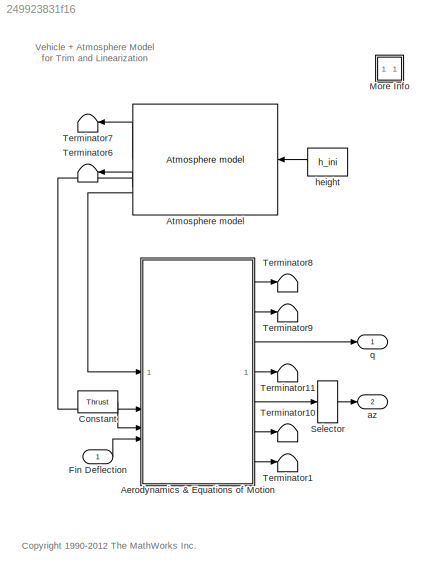
MODEL slx_249923831f16
KIND model
CONFIG AbsTol = 1e-6
CONFIG EnableMultiTasking = off
CONFIG FixedStep = auto
CONFIG MaxStep = auto
CONFIG MinStep = auto
CONFIG PreLoadFcn = aero_guid_dat
CONFIG RelTol = 1e-3
CONFIG SampleTimeConstraint = Unconstrained
CONFIG SolverName = ode45
CONFIG StartTime = 0.0
CONFIG StopTime = 10.0
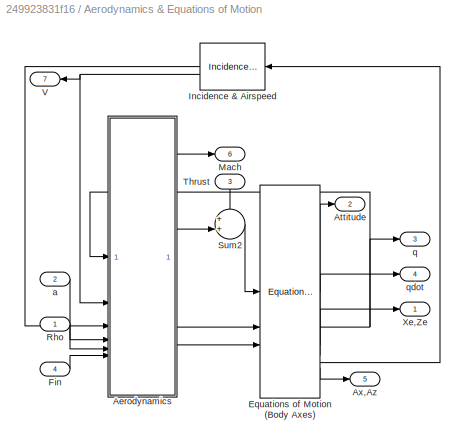
BLOCK [SubSystem] Aerodynamics & Equations of Motion
BLOCK [Reference] Aerodynamics & Equations of Motion/ Equations of Motion (Body Axes)  REF=aerospace/3DoF  (lib defined in mdl_cf564d925549, slx_1354fe9238a2, +3 more)
Equations
of
Motion / Equations of Motion
(Body Axes)
  SourceBlock = aerospace/3DoF\nEquations\nof\nMotion / Equations of Motion\n(Body Axes)
  SourceType = 3 DOF equations of motion
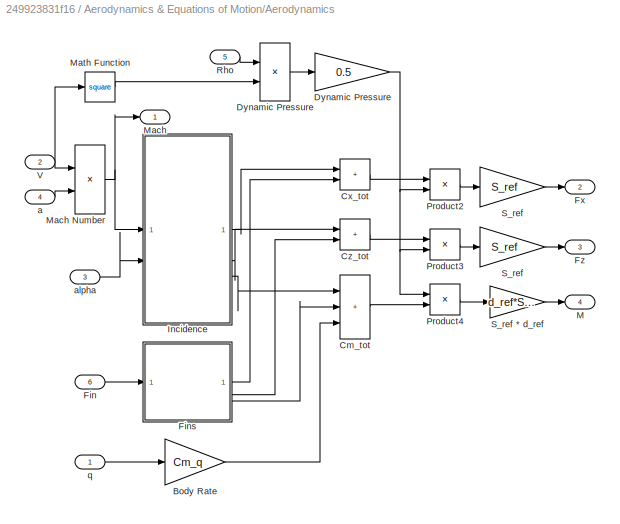
BLOCK [SubSystem] Aerodynamics & Equations of Motion/Aerodynamics
BLOCK [Outport] Aerodynamics & Equations of Motion/Aerodynamics/ M
  InitialOutput = 0
  Port = 4
  VectorParamsAs1DForOutWhenUnconnected = off
BLOCK [Outport] Aerodynamics & Equations of Motion/Aerodynamics/ Mach
  InitialOutput = 0
  NameLocation = top
  VectorParamsAs1DForOutWhenUnconnected = off
BLOCK [Gain] Aerodynamics & Equations of Motion/Aerodynamics/Body Rate
  Gain = Cm_q
  OutDataTypeStr = Inherit: Same as input
  ParamDataTypeStr = Inherit: Same as input
  SaturateOnIntegerOverflow = on
BLOCK [Sum] Aerodynamics & Equations of Motion/Aerodynamics/Cm_tot
  IconShape = rectangular
  InputSameDT = on
  Inputs = +++
  OutDataTypeStr = Inherit: Same as first input
  SaturateOnIntegerOverflow = on
BLOCK [Sum] Aerodynamics & Equations of Motion/Aerodynamics/Cx_tot
  IconShape = rectangular
  InputSameDT = on
  OutDataTypeStr = Inherit: Same as first input
  SaturateOnIntegerOverflow = on
BLOCK [Sum] Aerodynamics & Equations of Motion/Aerodynamics/Cz_tot
  IconShape = rectangular
  InputSameDT = on
  OutDataTypeStr = Inherit: Same as first input
  SaturateOnIntegerOverflow = on
BLOCK [Product] Aerodynamics & Equations of Motion/Aerodynamics/Dynamic Pressure
  InputSameDT = on
  OutDataTypeStr = Inherit: Same as first input
  RndMeth = Zero
  SaturateOnIntegerOverflow = on
BLOCK [Gain] Aerodynamics & Equations of Motion/Aerodynamics/Dynamic Pressure 
  Gain = 0.5
  OutDataTypeStr = Inherit: Same as input
  ParamDataTypeStr = Inherit: Same as input
  SaturateOnIntegerOverflow = on
BLOCK [Inport] Aerodynamics & Equations of Motion/Aerodynamics/Fin
  Port = 6
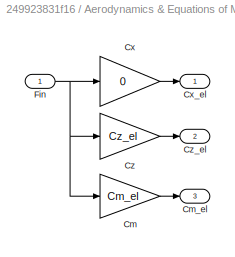
BLOCK [SubSystem] Aerodynamics & Equations of Motion/Aerodynamics/Fins
BLOCK [Gain] Aerodynamics & Equations of Motion/Aerodynamics/Fins/Cm
  Gain = Cm_el
  OutDataTypeStr = Inherit: Same as input
  ParamDataTypeStr = Inherit: Same as input
  SaturateOnIntegerOverflow = on
BLOCK [Outport] Aerodynamics & Equations of Motion/Aerodynamics/Fins/Cm_el
  InitialOutput = 0
  Port = 3
  VectorParamsAs1DForOutWhenUnconnected = off
BLOCK [Gain] Aerodynamics & Equations of Motion/Aerodynamics/Fins/Cx
  Gain = 0
  OutDataTypeStr = Inherit: Same as input
  ParamDataTypeStr = Inherit: Same as input
  SaturateOnIntegerOverflow = on
BLOCK [Outport] Aerodynamics & Equations of Motion/Aerodynamics/Fins/Cx_el
  InitialOutput = 0
  VectorParamsAs1DForOutWhenUnconnected = off
BLOCK [Gain] Aerodynamics & Equations of Motion/Aerodynamics/Fins/Cz
  Gain = Cz_el
  OutDataTypeStr = Inherit: Same as input
  ParamDataTypeStr = Inherit: Same as input
  SaturateOnIntegerOverflow = on
BLOCK [Outport] Aerodynamics & Equations of Motion/Aerodynamics/Fins/Cz_el
  InitialOutput = 0
  Port = 2
  VectorParamsAs1DForOutWhenUnconnected = off
BLOCK [Inport] Aerodynamics & Equations of Motion/Aerodynamics/Fins/Fin
BLOCK [Outport] Aerodynamics & Equations of Motion/Aerodynamics/Fx
  InitialOutput = [0]
  Port = 2
  VectorParamsAs1DForOutWhenUnconnected = off
BLOCK [Outport] Aerodynamics & Equations of Motion/Aerodynamics/Fz
  InitialOutput = 0
  Port = 3
  VectorParamsAs1DForOutWhenUnconnected = off
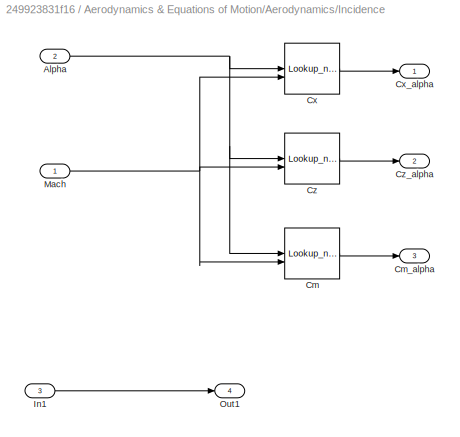
BLOCK [SubSystem] Aerodynamics & Equations of Motion/Aerodynamics/Incidence
BLOCK [Inport] Aerodynamics & Equations of Motion/Aerodynamics/Incidence/Alpha
  Port = 2
BLOCK [Lookup_n-D] Aerodynamics & Equations of Motion/Aerodynamics/Incidence/Cm
  BeginIndexSearchUsingPreviousIndexResult = on
  BreakpointsForDimension1 = alpha_vec
  BreakpointsForDimension2 = Mach_vec
  InputPortMap = u0,u1
  InternalRulePriority = Speed
  RndMeth = Simplest
  Table = Cm_alpha
BLOCK [Outport] Aerodynamics & Equations of Motion/Aerodynamics/Incidence/Cm_alpha
  InitialOutput = 0
  Port = 3
  VectorParamsAs1DForOutWhenUnconnected = off
BLOCK [Lookup_n-D] Aerodynamics & Equations of Motion/Aerodynamics/Incidence/Cx
  BeginIndexSearchUsingPreviousIndexResult = on
  BreakpointsForDimension1 = alpha_vec
  BreakpointsForDimension2 = Mach_vec
  InputPortMap = u0,u1
  InternalRulePriority = Speed
  RndMeth = Simplest
  Table = Cx_alpha
BLOCK [Outport] Aerodynamics & Equations of Motion/Aerodynamics/Incidence/Cx_alpha
  InitialOutput = 0
  VectorParamsAs1DForOutWhenUnconnected = off
BLOCK [Lookup_n-D] Aerodynamics & Equations of Motion/Aerodynamics/Incidence/Cz
  BeginIndexSearchUsingPreviousIndexResult = on
  BreakpointsForDimension1 = alpha_vec
  BreakpointsForDimension2 = Mach_vec
  InputPortMap = u0,u1
  InternalRulePriority = Speed
  RndMeth = Simplest
  Table = Cz_alpha
BLOCK [Outport] Aerodynamics & Equations of Motion/Aerodynamics/Incidence/Cz_alpha
  InitialOutput = 0
  Port = 2
  VectorParamsAs1DForOutWhenUnconnected = off
BLOCK [Inport] Aerodynamics & Equations of Motion/Aerodynamics/Incidence/In1
  Port = 3
BLOCK [Inport] Aerodynamics & Equations of Motion/Aerodynamics/Incidence/Mach
BLOCK [Outport] Aerodynamics & Equations of Motion/Aerodynamics/Incidence/Out1
  Port = 4
BLOCK [Product] Aerodynamics & Equations of Motion/Aerodynamics/Mach Number
  InputSameDT = on
  Inputs = */
  OutDataTypeStr = Inherit: Same as first input
  RndMeth = Zero
  SaturateOnIntegerOverflow = on
BLOCK [Math] Aerodynamics & Equations of Motion/Aerodynamics/Math Function
  Operator = square
  SignedPower = on
BLOCK [Product] Aerodynamics & Equations of Motion/Aerodynamics/Product2
  InputSameDT = on
  OutDataTypeStr = Inherit: Same as first input
  RndMeth = Zero
  SaturateOnIntegerOverflow = on
BLOCK [Product] Aerodynamics & Equations of Motion/Aerodynamics/Product3
  InputSameDT = on
  OutDataTypeStr = Inherit: Same as first input
  RndMeth = Zero
  SaturateOnIntegerOverflow = on
BLOCK [Product] Aerodynamics & Equations of Motion/Aerodynamics/Product4
  InputSameDT = on
  OutDataTypeStr = Inherit: Same as first input
  RndMeth = Zero
  SaturateOnIntegerOverflow = on
BLOCK [Inport] Aerodynamics & Equations of Motion/Aerodynamics/Rho
  NameLocation = top
  Port = 5
BLOCK [Gain] Aerodynamics & Equations of Motion/Aerodynamics/S_ref
  Gain = S_ref
  OutDataTypeStr = Inherit: Same as input
  ParamDataTypeStr = Inherit: Same as input
  SaturateOnIntegerOverflow = on
BLOCK [Gain] Aerodynamics & Equations of Motion/Aerodynamics/S_ref 
  Gain = S_ref
  OutDataTypeStr = Inherit: Same as input
  ParamDataTypeStr = Inherit: Same as input
  SaturateOnIntegerOverflow = on
BLOCK [Gain] Aerodynamics & Equations of Motion/Aerodynamics/S_ref * d_ref
  Gain = d_ref*S_ref
  OutDataTypeStr = Inherit: Same as input
  ParamDataTypeStr = Inherit: Same as input
  SaturateOnIntegerOverflow = on
BLOCK [Inport] Aerodynamics & Equations of Motion/Aerodynamics/V
  Port = 2
BLOCK [Inport] Aerodynamics & Equations of Motion/Aerodynamics/a
  Port = 4
BLOCK [Inport] Aerodynamics & Equations of Motion/Aerodynamics/alpha
  Port = 3
BLOCK [Inport] Aerodynamics & Equations of Motion/Aerodynamics/q
BLOCK [Outport] Aerodynamics & Equations of Motion/Attitude
  InitialOutput = 0
  Port = 2
  VectorParamsAs1DForOutWhenUnconnected = off
BLOCK [Outport] Aerodynamics & Equations of Motion/Ax,Az
  InitialOutput = 0
  Port = 5
  VectorParamsAs1DForOutWhenUnconnected = off
BLOCK [Inport] Aerodynamics & Equations of Motion/Fin
  Port = 4
BLOCK [Reference] Aerodynamics & Equations of Motion/Incidence & Airspeed  REF=aerospace/3DoF  (lib defined in mdl_cf564d925549, slx_1354fe9238a2, +3 more)
Equations
of
Motion /Incidence 
& Airspeed
  NameLocation = top
  SourceBlock = aerospace/3DoF\nEquations\nof\nMotion /Incidence \n& Airspeed
  SourceType = Incidence and Airspeed
BLOCK [Outport] Aerodynamics & Equations of Motion/Mach
  InitialOutput = 0
  NameLocation = top
  Port = 6
  VectorParamsAs1DForOutWhenUnconnected = off
BLOCK [Inport] Aerodynamics & Equations of Motion/Rho
BLOCK [Sum] Aerodynamics & Equations of Motion/Sum2
  InputSameDT = on
  Inputs = ++|
  OutDataTypeStr = Inherit: Same as first input
  SaturateOnIntegerOverflow = on
BLOCK [Inport] Aerodynamics & Equations of Motion/Thrust
  NameLocation = left
  Port = 3
BLOCK [Outport] Aerodynamics & Equations of Motion/V
  InitialOutput = 0
  Port = 7
  VectorParamsAs1DForOutWhenUnconnected = off
BLOCK [Outport] Aerodynamics & Equations of Motion/Xe,Ze
  InitialOutput = 0
  VectorParamsAs1DForOutWhenUnconnected = off
BLOCK [Inport] Aerodynamics & Equations of Motion/a
  Port = 2
BLOCK [Outport] Aerodynamics & Equations of Motion/q
  InitialOutput = 0
  Port = 3
  VectorParamsAs1DForOutWhenUnconnected = off
BLOCK [Outport] Aerodynamics & Equations of Motion/qdot
  InitialOutput = 0
  Port = 4
  VectorParamsAs1DForOutWhenUnconnected = off
BLOCK [Reference] Atmosphere model  REF=aerospace/Atmosphere/Atmosphere  (lib defined in mdl_cf564d925549, slx_1354fe9238a2, +3 more)
model
  SourceBlock = aerospace/Atmosphere/Atmosphere\nmodel
  SourceType = Atmosphere Model
BLOCK [Constant] Constant
  Value = Thrust
BLOCK [Inport] Fin Deflection
BLOCK [SubSystem] More Info
  OpenFcn = showExample('simulink_aerospace/AirframeTrimAndLinearizeExample')
BLOCK [Selector] Selector
  IndexOptions = Index vector (dialog)
  Indices = [2]
  InputPortWidth = 2
  OutputSizes = 1
BLOCK [Terminator] Terminator1
BLOCK [Terminator] Terminator10
BLOCK [Terminator] Terminator11
BLOCK [Terminator] Terminator6
BLOCK [Terminator] Terminator7
BLOCK [Terminator] Terminator8
BLOCK [Terminator] Terminator9
BLOCK [Outport] az
  InitialOutput = 0
  Port = 2
  VectorParamsAs1DForOutWhenUnconnected = off
BLOCK [Constant] height
  Value = h_ini
BLOCK [Outport] q
  InitialOutput = 0
  VectorParamsAs1DForOutWhenUnconnected = off
ANNOTATION (root): <copyright redacted>
ANNOTATION (root): Vehicle + Atmosphere Model for Trim and Linearization
LINE Aerodynamics & Equations of Motion/ Equations of Motion (Body Axes):1 -> Aerodynamics & Equations of Motion/Attitude:1
NET Aerodynamics & Equations of Motion/ Equations of Motion (Body Axes):2 -> Aerodynamics & Equations of Motion/Aerodynamics:1, Aerodynamics & Equations of Motion/q:1
LINE Aerodynamics & Equations of Motion/ Equations of Motion (Body Axes):3 -> Aerodynamics & Equations of Motion/qdot:1
LINE Aerodynamics & Equations of Motion/ Equations of Motion (Body Axes):4 -> Aerodynamics & Equations of Motion/Xe,Ze:1
LINE Aerodynamics & Equations of Motion/ Equations of Motion (Body Axes):5 -> Aerodynamics & Equations of Motion/Incidence & Airspeed:1
LINE Aerodynamics & Equations of Motion/ Equations of Motion (Body Axes):6 -> Aerodynamics & Equations of Motion/Ax,Az:1
LINE Aerodynamics & Equations of Motion/Aerodynamics/Body Rate:1 -> Aerodynamics & Equations of Motion/Aerodynamics/Cm_tot:3
LINE Aerodynamics & Equations of Motion/Aerodynamics/Cm_tot:1 -> Aerodynamics & Equations of Motion/Aerodynamics/Product4:2
LINE Aerodynamics & Equations of Motion/Aerodynamics/Cx_tot:1 -> Aerodynamics & Equations of Motion/Aerodynamics/Product2:1
LINE Aerodynamics & Equations of Motion/Aerodynamics/Cz_tot:1 -> Aerodynamics & Equations of Motion/Aerodynamics/Product3:1
NET Aerodynamics & Equations of Motion/Aerodynamics/Dynamic Pressure :1 -> Aerodynamics & Equations of Motion/Aerodynamics/Product2:2, Aerodynamics & Equations of Motion/Aerodynamics/Product3:2, Aerodynamics & Equations of Motion/Aerodynamics/Product4:1
LINE Aerodynamics & Equations of Motion/Aerodynamics/Dynamic Pressure:1 -> Aerodynamics & Equations of Motion/Aerodynamics/Dynamic Pressure :1
LINE Aerodynamics & Equations of Motion/Aerodynamics/Fin:1 -> Aerodynamics & Equations of Motion/Aerodynamics/Fins:1
LINE Aerodynamics & Equations of Motion/Aerodynamics/Fins/Cm:1 -> Aerodynamics & Equations of Motion/Aerodynamics/Fins/Cm_el:1
LINE Aerodynamics & Equations of Motion/Aerodynamics/Fins/Cx:1 -> Aerodynamics & Equations of Motion/Aerodynamics/Fins/Cx_el:1
LINE Aerodynamics & Equations of Motion/Aerodynamics/Fins/Cz:1 -> Aerodynamics & Equations of Motion/Aerodynamics/Fins/Cz_el:1
NET Aerodynamics & Equations of Motion/Aerodynamics/Fins/Fin:1 -> Aerodynamics & Equations of Motion/Aerodynamics/Fins/Cm:1, Aerodynamics & Equations of Motion/Aerodynamics/Fins/Cx:1, Aerodynamics & Equations of Motion/Aerodynamics/Fins/Cz:1
LINE Aerodynamics & Equations of Motion/Aerodynamics/Fins:1 -> Aerodynamics & Equations of Motion/Aerodynamics/Cx_tot:2
LINE Aerodynamics & Equations of Motion/Aerodynamics/Fins:2 -> Aerodynamics & Equations of Motion/Aerodynamics/Cz_tot:2
LINE Aerodynamics & Equations of Motion/Aerodynamics/Fins:3 -> Aerodynamics & Equations of Motion/Aerodynamics/Cm_tot:2
NET Aerodynamics & Equations of Motion/Aerodynamics/Incidence/Alpha:1 -> Aerodynamics & Equations of Motion/Aerodynamics/Incidence/Cm:1, Aerodynamics & Equations of Motion/Aerodynamics/Incidence/Cx:1, Aerodynamics & Equations of Motion/Aerodynamics/Incidence/Cz:1
LINE Aerodynamics & Equations of Motion/Aerodynamics/Incidence/Cm:1 -> Aerodynamics & Equations of Motion/Aerodynamics/Incidence/Cm_alpha:1
LINE Aerodynamics & Equations of Motion/Aerodynamics/Incidence/Cx:1 -> Aerodynamics & Equations of Motion/Aerodynamics/Incidence/Cx_alpha:1
LINE Aerodynamics & Equations of Motion/Aerodynamics/Incidence/Cz:1 -> Aerodynamics & Equations of Motion/Aerodynamics/Incidence/Cz_alpha:1
LINE Aerodynamics & Equations of Motion/Aerodynamics/Incidence/In1:1 -> Aerodynamics & Equations of Motion/Aerodynamics/Incidence/Out1:1
NET Aerodynamics & Equations of Motion/Aerodynamics/Incidence/Mach:1 -> Aerodynamics & Equations of Motion/Aerodynamics/Incidence/Cm:2, Aerodynamics & Equations of Motion/Aerodynamics/Incidence/Cx:2, Aerodynamics & Equations of Motion/Aerodynamics/Incidence/Cz:2
LINE Aerodynamics & Equations of Motion/Aerodynamics/Incidence:1 -> Aerodynamics & Equations of Motion/Aerodynamics/Cx_tot:1
LINE Aerodynamics & Equations of Motion/Aerodynamics/Incidence:2 -> Aerodynamics & Equations of Motion/Aerodynamics/Cz_tot:1
LINE Aerodynamics & Equations of Motion/Aerodynamics/Incidence:3 -> Aerodynamics & Equations of Motion/Aerodynamics/Cm_tot:1
NET Aerodynamics & Equations of Motion/Aerodynamics/Mach Number:1 -> Aerodynamics & Equations of Motion/Aerodynamics/ Mach:1, Aerodynamics & Equations of Motion/Aerodynamics/Incidence:1
LINE Aerodynamics & Equations of Motion/Aerodynamics/Math Function:1 -> Aerodynamics & Equations of Motion/Aerodynamics/Dynamic Pressure:2
LINE Aerodynamics & Equations of Motion/Aerodynamics/Product2:1 -> Aerodynamics & Equations of Motion/Aerodynamics/S_ref:1
LINE Aerodynamics & Equations of Motion/Aerodynamics/Product3:1 -> Aerodynamics & Equations of Motion/Aerodynamics/S_ref :1
LINE Aerodynamics & Equations of Motion/Aerodynamics/Product4:1 -> Aerodynamics & Equations of Motion/Aerodynamics/S_ref * d_ref:1
LINE Aerodynamics & Equations of Motion/Aerodynamics/Rho:1 -> Aerodynamics & Equations of Motion/Aerodynamics/Dynamic Pressure:1
LINE Aerodynamics & Equations of Motion/Aerodynamics/S_ref * d_ref:1 -> Aerodynamics & Equations of Motion/Aerodynamics/ M:1
LINE Aerodynamics & Equations of Motion/Aerodynamics/S_ref :1 -> Aerodynamics & Equations of Motion/Aerodynamics/Fz:1
LINE Aerodynamics & Equations of Motion/Aerodynamics/S_ref:1 -> Aerodynamics & Equations of Motion/Aerodynamics/Fx:1
NET Aerodynamics & Equations of Motion/Aerodynamics/V:1 -> Aerodynamics & Equations of Motion/Aerodynamics/Mach Number:1, Aerodynamics & Equations of Motion/Aerodynamics/Math Function:1
LINE Aerodynamics & Equations of Motion/Aerodynamics/a:1 -> Aerodynamics & Equations of Motion/Aerodynamics/Mach Number:2
LINE Aerodynamics & Equations of Motion/Aerodynamics/alpha:1 -> Aerodynamics & Equations of Motion/Aerodynamics/Incidence:2
LINE Aerodynamics & Equations of Motion/Aerodynamics/q:1 -> Aerodynamics & Equations of Motion/Aerodynamics/Body Rate:1
LINE Aerodynamics & Equations of Motion/Aerodynamics:1 -> Aerodynamics & Equations of Motion/Mach:1
LINE Aerodynamics & Equations of Motion/Aerodynamics:2 -> Aerodynamics & Equations of Motion/Sum2:2
LINE Aerodynamics & Equations of Motion/Aerodynamics:3 -> Aerodynamics & Equations of Motion/ Equations of Motion (Body Axes):2
LINE Aerodynamics & Equations of Motion/Aerodynamics:4 -> Aerodynamics & Equations of Motion/ Equations of Motion (Body Axes):3
LINE Aerodynamics & Equations of Motion/Fin:1 -> Aerodynamics & Equations of Motion/Aerodynamics:6
LINE Aerodynamics & Equations of Motion/Incidence & Airspeed:1 -> Aerodynamics & Equations of Motion/Aerodynamics:3
NET Aerodynamics & Equations of Motion/Incidence & Airspeed:2 -> Aerodynamics & Equations of Motion/Aerodynamics:2, Aerodynamics & Equations of Motion/V:1
LINE Aerodynamics & Equations of Motion/Rho:1 -> Aerodynamics & Equations of Motion/Aerodynamics:5
LINE Aerodynamics & Equations of Motion/Sum2:1 -> Aerodynamics & Equations of Motion/ Equations of Motion (Body Axes):1
LINE Aerodynamics & Equations of Motion/Thrust:1 -> Aerodynamics & Equations of Motion/Sum2:1
LINE Aerodynamics & Equations of Motion/a:1 -> Aerodynamics & Equations of Motion/Aerodynamics:4
LINE Aerodynamics & Equations of Motion:1 -> Terminator8:1
LINE Aerodynamics & Equations of Motion:2 -> Terminator9:1
LINE Aerodynamics & Equations of Motion:3 -> q:1
LINE Aerodynamics & Equations of Motion:4 -> Terminator11:1
LINE Aerodynamics & Equations of Motion:5 -> Selector:1
LINE Aerodynamics & Equations of Motion:6 -> Terminator10:1
LINE Aerodynamics & Equations of Motion:7 -> Terminator1:1
LINE Atmosphere model:1 -> Terminator7:1
LINE Atmosphere model:2 -> Aerodynamics & Equations of Motion:2
LINE Atmosphere model:3 -> Terminator6:1
LINE Atmosphere model:4 -> Aerodynamics & Equations of Motion:1
LINE Constant:1 -> Aerodynamics & Equations of Motion:3
LINE Fin Deflection:1 -> Aerodynamics & Equations of Motion:4
LINE Selector:1 -> az:1
LINE height:1 -> Atmosphere model:1
note: NET lines group one-source signal fan-out (src -> all destinations, sorted); 1:1 wires keep LINE
